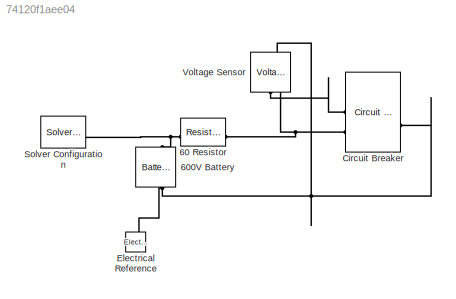
MODEL slx_74120f1aee04
KIND model
CONFIG AbsTol = auto
CONFIG EnableMultiTasking = off
CONFIG FixedStep = auto
CONFIG MaxStep = auto
CONFIG MinStep = auto
CONFIG RelTol = 1e-3
CONFIG SampleTimeConstraint = Unconstrained
CONFIG SolverName = VariableStepAuto
CONFIG StartTime = 0.0
CONFIG StopTime = 10.0
BLOCK [Reference] 60 Resistor  REF=fl_lib/Electrical/Electrical Elements/Resistor
  SourceBlock = fl_lib/Electrical/Electrical Elements/Resistor
  SourceType = Resistor
BLOCK [Reference] 600V Battery  REF=batteryecm_lib/Battery
  LibrarySourceBlock = batt_lib/Cells/Battery
  NameLocation = right
  SourceBlock = batteryecm_lib/Battery
  SourceType = Battery
BLOCK [Reference] Circuit Breaker  REF=ee_lib/Switches & Breakers/Circuit Breaker
  SourceBlock = ee_lib/Switches & Breakers/Circuit Breaker
  SourceType = Circuit Breaker
BLOCK [Reference] Electrical Reference  REF=fl_lib/Electrical/Electrical Elements/Electrical Reference
  NameLocation = right
  SourceBlock = fl_lib/Electrical/Electrical Elements/Electrical Reference
  SourceType = Electrical Reference
BLOCK [Reference] Solver Configuration  REF=nesl_utility/Solver
Configuration
  SourceBlock = nesl_utility/Solver\nConfiguration
  SourceType = Solver\nConfiguration
BLOCK [Reference] Voltage Sensor  REF=fl_lib/Electrical/Electrical Sensors/Voltage Sensor
  NameLocation = right
  SourceBlock = fl_lib/Electrical/Electrical Sensors/Voltage Sensor
  SourceType = Voltage Sensor
PNET net1: 60 Resistor:LConn1 -- 600V Battery:LConn1 -- Solver Configuration:RConn1
PNET net2: 60 Resistor:RConn1 -- Circuit Breaker:LConn2 -- Voltage Sensor:RConn2
PNET net3: 600V Battery:RConn1 -- Circuit Breaker:RConn1 -- Electrical Reference:LConn1 -- Voltage Sensor:LConn1
PLINE Circuit Breaker:LConn1 -- Voltage Sensor:RConn1
note: PNET lines group multi-terminal physical nets as a canonical sorted terminal list (undirected conserving connections); 2-terminal nets keep the pairwise PLINE form
